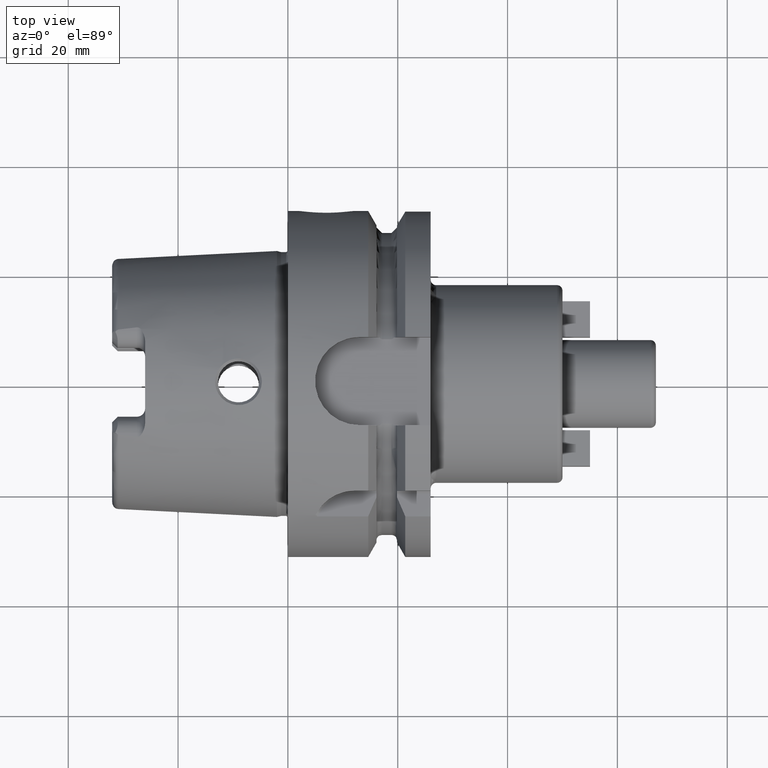
[diagram: clean part render]
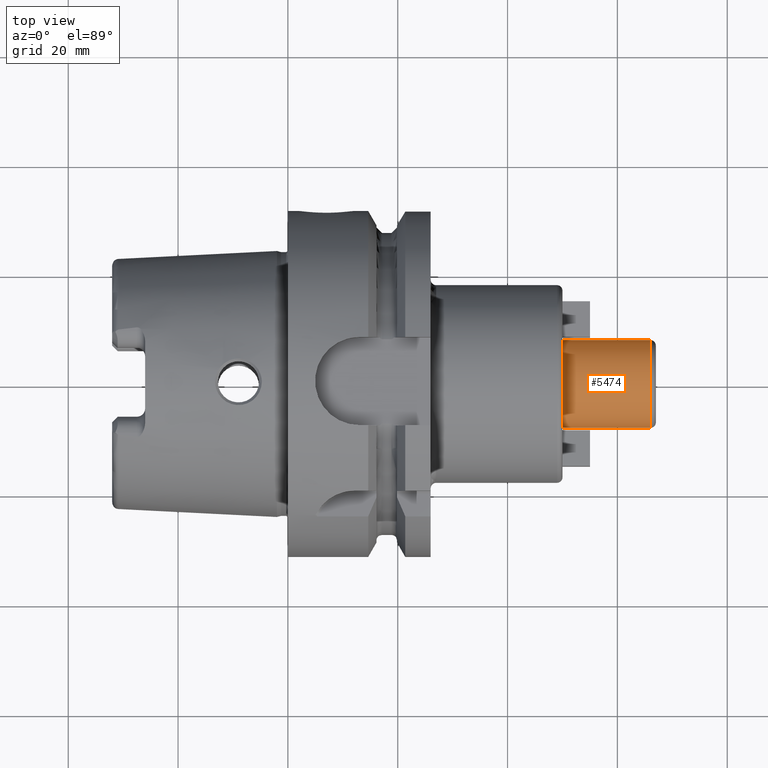
[diagram: same view with one face highlighted and labeled with its STEP entity id]
A machine part, top view. The second image highlights one B-rep face of the part: STEP entity #5474.
In plain terms, the highlighted cylindrical surface (partial cylindrical patch) has radius 8 mm, axis along (1, 0, 0).
Its self-contained STEP definition (entity closure, byte-faithful):
#2004=CARTESIAN_POINT('',(5.E1,0.E0,0.E0));
#2005=DIRECTION('',(1.E0,0.E0,0.E0));
#2006=DIRECTION('',(0.E0,1.E0,0.E0));
#2007=AXIS2_PLACEMENT_3D('',#2004,#2005,#2006);
#2056=CARTESIAN_POINT('',(6.6E1,0.E0,0.E0));
#2057=DIRECTION('',(-1.E0,0.E0,0.E0));
#2058=DIRECTION('',(0.E0,-1.E0,0.E0));
#2059=AXIS2_PLACEMENT_3D('',#2056,#2057,#2058);
#2076=DIRECTION('',(-1.E0,0.E0,9.035438717843E-14));
#2077=VECTOR('',#2076,1.6E1);
#2078=CARTESIAN_POINT('',(6.6E1,8.E0,-1.445017049895E-12));
#2079=LINE('',#2078,#2077);
#2080=DIRECTION('',(-1.E0,0.E0,-9.033907909344E-14));
#2081=VECTOR('',#2080,1.6E1);
#2082=CARTESIAN_POINT('',(6.6E1,-8.E0,1.444772120536E-12));
#2083=LINE('',#2082,#2081);
#3202=CARTESIAN_POINT('',(5.E1,8.E0,0.E0));
#3203=CARTESIAN_POINT('',(5.E1,-8.E0,0.E0));
#3204=VERTEX_POINT('',#3202);
#3205=VERTEX_POINT('',#3203);
#3210=CARTESIAN_POINT('',(6.6E1,8.E0,0.E0));
#3211=CARTESIAN_POINT('',(6.6E1,-8.E0,0.E0));
#3212=VERTEX_POINT('',#3210);
#3213=VERTEX_POINT('',#3211);
#5460=CARTESIAN_POINT('',(2.395E1,0.E0,0.E0));
#5461=DIRECTION('',(1.E0,0.E0,0.E0));
#5462=DIRECTION('',(0.E0,-1.E0,0.E0));
#5463=AXIS2_PLACEMENT_3D('',#5460,#5461,#5462);
#5464=CYLINDRICAL_SURFACE('',#5463,8.E0);
#5466=ORIENTED_EDGE('',*,*,#5465,.F.);
#5468=ORIENTED_EDGE('',*,*,#5467,.T.);
#5469=ORIENTED_EDGE('',*,*,#5433,.F.);
#5471=ORIENTED_EDGE('',*,*,#5470,.F.);
#5472=EDGE_LOOP('',(#5466,#5468,#5469,#5471));
#5473=FACE_OUTER_BOUND('',#5472,.F.);
#5474=ADVANCED_FACE('',(#5473),#5464,.T.);
#2008=CIRCLE('',#2007,8.E0);
#2060=CIRCLE('',#2059,8.E0);
#5433=EDGE_CURVE('',#3204,#3205,#2008,.T.);
#5465=EDGE_CURVE('',#3213,#3212,#2060,.T.);
#5467=EDGE_CURVE('',#3213,#3205,#2083,.T.);
#5470=EDGE_CURVE('',#3212,#3204,#2079,.T.);